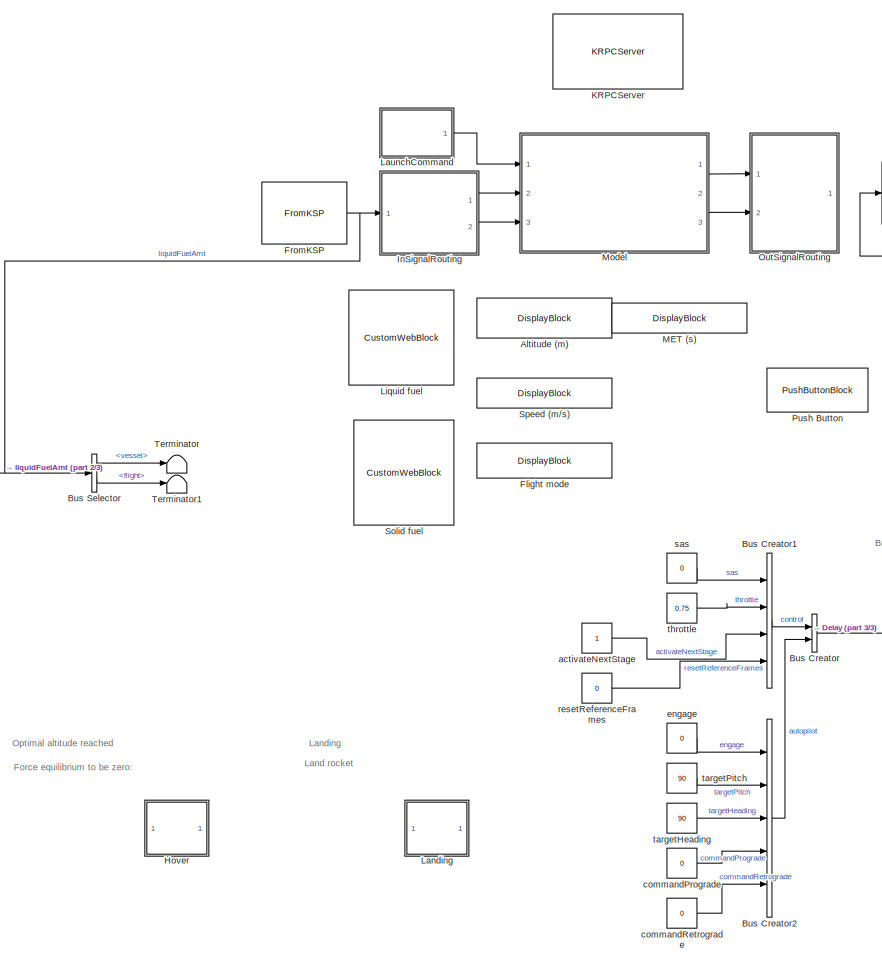
[diagram: root canvas - part 1/3, center side, full height]
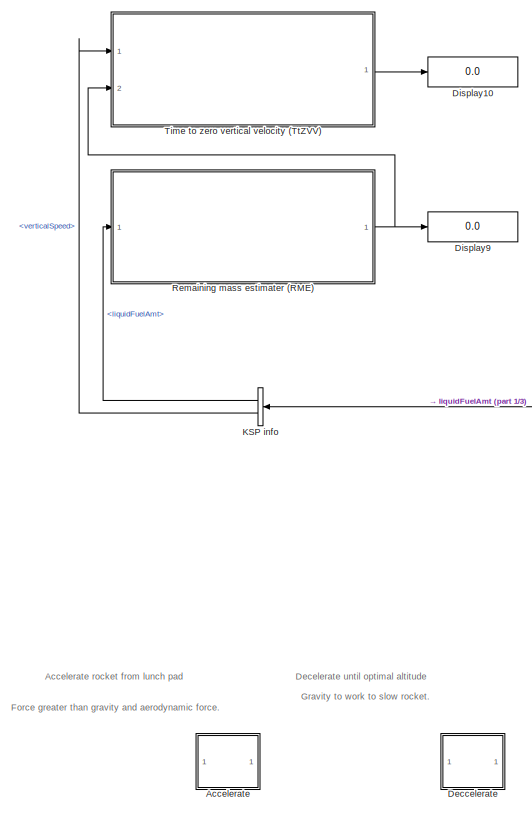
[diagram: root canvas - part 2/3, left side, full height]
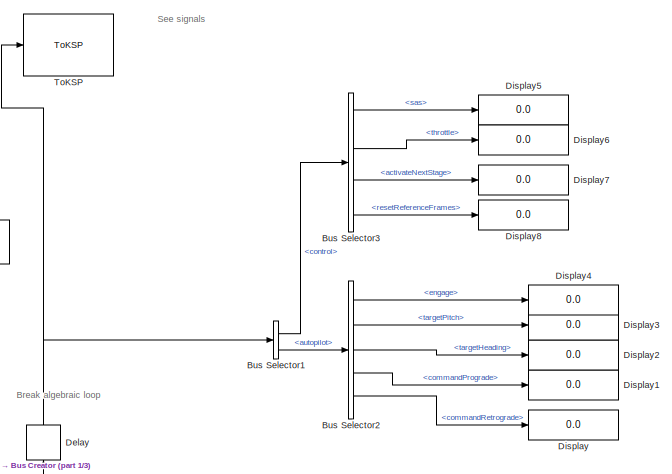
[diagram: root canvas - part 3/3, middle right region]
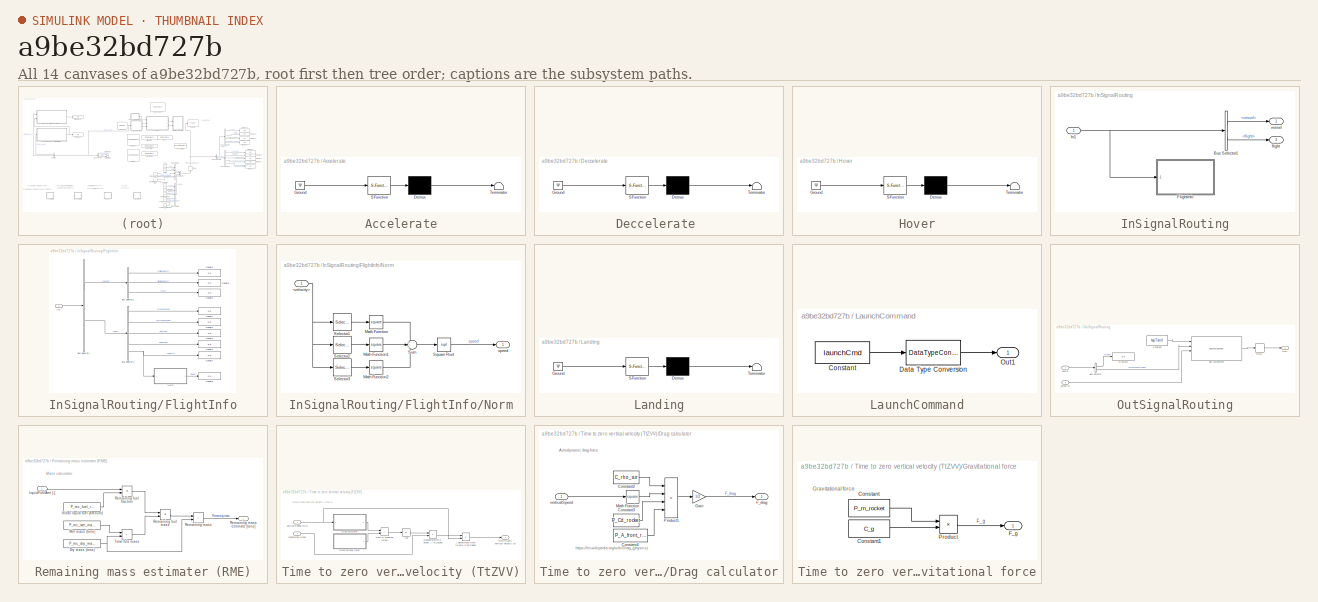
[diagram: thumbnail index - all 14 canvases of the model, root first then tree order]
MODEL slx_a9be32bd727b
KIND model
CONFIG AbsTol = auto
CONFIG EnableMultiTasking = off
CONFIG FixedStep = 0.01
CONFIG MaxStep = auto
CONFIG MinStep = auto
CONFIG RelTol = 1e-3
CONFIG SampleTimeConstraint = Unconstrained
CONFIG SolverName = FixedStepAuto
CONFIG StartTime = 0.0
CONFIG StopTime = inf
BLOCK [SubSystem] Accelerate
  ErrorFcn = Stateflow.Translate.translate
  PermitHierarchicalResolution = ExplicitOnly
  Ports = []
  RequestExecContextInheritance = off
  SFBlockType = Chart
  TreatAsAtomicUnit = on
BLOCK [Demux] Accelerate/ Demux 
  Outputs = 1
  Ports = [1, 1]
BLOCK [Ground] Accelerate/ Ground 
BLOCK [S-Function] Accelerate/ SFunction 
  EnableBusSupport = on
  FunctionName = sf_sfun
  PortCounts = [1 1]
  Ports = [1, 1]
  SFcnIsStateOwnerBlock = off
  SFunctionDeploymentMode = off
  Tag = Stateflow S-Function 3
BLOCK [Terminator] Accelerate/ Terminator 
BLOCK [DisplayBlock] Altitude (m)
  Format = short
  LabelPosition = Bottom
  Transparency = 1
BLOCK [BusCreator] Bus Creator
  DisplayOption = bar
  InheritFromInputs = on
  Inputs = 2
  NonVirtualBus = on
  OutDataTypeStr = Bus: kspTxIn
  Ports = [2, 1]
BLOCK [BusCreator] Bus Creator1
  DisplayOption = bar
  InheritFromInputs = on
  Inputs = 4
  NonVirtualBus = on
  OutDataTypeStr = Bus: control
  Ports = [4, 1]
BLOCK [BusCreator] Bus Creator2
  DisplayOption = bar
  InheritFromInputs = on
  Inputs = 5
  NonVirtualBus = on
  OutDataTypeStr = Bus: autopilot
  Ports = [5, 1]
BLOCK [BusSelector] Bus Selector
  OutputSignals = vessel,flight
  Ports = [1, 2]
BLOCK [BusSelector] Bus Selector1
  OutputSignals = control,autopilot
  Ports = [1, 2]
BLOCK [BusSelector] Bus Selector2
  OutputSignals = engage,targetPitch,targetHeading,commandPrograde,commandRetrograde
  Ports = [1, 5]
BLOCK [BusSelector] Bus Selector3
  OutputSignals = sas,throttle,activateNextStage,resetReferenceFrames
  Ports = [1, 4]
BLOCK [SubSystem] Deccelerate 
  ErrorFcn = Stateflow.Translate.translate
  PermitHierarchicalResolution = ExplicitOnly
  Ports = []
  RequestExecContextInheritance = off
  SFBlockType = Chart
  TreatAsAtomicUnit = on
BLOCK [Demux] Deccelerate / Demux 
  Outputs = 1
  Ports = [1, 1]
BLOCK [Ground] Deccelerate / Ground 
BLOCK [S-Function] Deccelerate / SFunction 
  EnableBusSupport = on
  FunctionName = sf_sfun
  PortCounts = [1 1]
  Ports = [1, 1]
  SFcnIsStateOwnerBlock = off
  SFunctionDeploymentMode = off
  Tag = Stateflow S-Function 1
BLOCK [Terminator] Deccelerate / Terminator 
BLOCK [Delay] Delay
  DelayLength = 1
  InputPortMap = u0
  NameLocation = right
  Ports = [1, 1]
BLOCK [Display] Display
  Decimation = 1
  Ports = [1]
BLOCK [Display] Display1
  Decimation = 1
  Ports = [1]
BLOCK [Display] Display10
  Decimation = 1
  Ports = [1]
BLOCK [Display] Display2
  Decimation = 1
  Ports = [1]
BLOCK [Display] Display3
  Decimation = 1
  Ports = [1]
BLOCK [Display] Display4
  Decimation = 1
  Ports = [1]
BLOCK [Display] Display5
  Decimation = 1
  Ports = [1]
BLOCK [Display] Display6
  Decimation = 1
  Ports = [1]
BLOCK [Display] Display7
  Decimation = 1
  Ports = [1]
BLOCK [Display] Display8
  Decimation = 1
  Ports = [1]
BLOCK [Display] Display9
  Decimation = 1
  Ports = [1]
BLOCK [DisplayBlock] Flight mode
  Format = short
  LabelPosition = Bottom
  Transparency = 1
BLOCK [Reference] FromKSP  REF=ksplib/FromKSP  (lib defined in slx_22327d9a050f)
  Ports = [0, 1]
  SourceBlock = ksplib/FromKSP
  SourceType = FromKSP
BLOCK [SubSystem] Hover
  ErrorFcn = Stateflow.Translate.translate
  PermitHierarchicalResolution = ExplicitOnly
  Ports = []
  RequestExecContextInheritance = off
  SFBlockType = Chart
  TreatAsAtomicUnit = on
BLOCK [Demux] Hover/ Demux 
  Outputs = 1
  Ports = [1, 1]
BLOCK [Ground] Hover/ Ground 
BLOCK [S-Function] Hover/ SFunction 
  EnableBusSupport = on
  FunctionName = sf_sfun
  PortCounts = [1 1]
  Ports = [1, 1]
  SFcnIsStateOwnerBlock = off
  SFunctionDeploymentMode = off
  Tag = Stateflow S-Function 5
BLOCK [Terminator] Hover/ Terminator 
BLOCK [SubSystem] InSignalRouting
  Commented = on
  Ports = [1, 2]
  RequestExecContextInheritance = off
BLOCK [BusSelector] InSignalRouting/Bus Selector1
  OutputSignals = vessel,flight
  Ports = [1, 2]
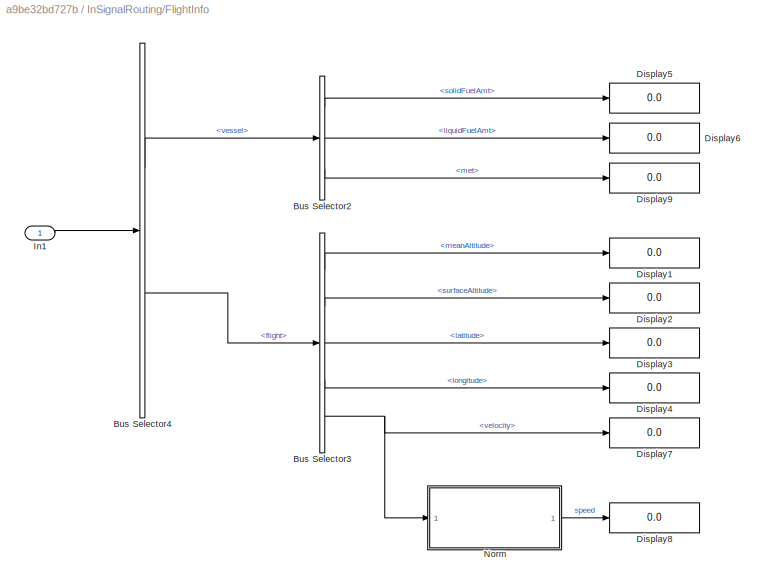
BLOCK [SubSystem] InSignalRouting/FlightInfo
  Ports = [1]
  RequestExecContextInheritance = off
BLOCK [BusSelector] InSignalRouting/FlightInfo/Bus Selector2
  OutputSignals = solidFuelAmt,liquidFuelAmt,met
  Ports = [1, 3]
BLOCK [BusSelector] InSignalRouting/FlightInfo/Bus Selector3
  OutputSignals = meanAltitude,surfaceAltitude,latitude,longitude,velocity
  Ports = [1, 5]
BLOCK [BusSelector] InSignalRouting/FlightInfo/Bus Selector4
  OutputSignals = vessel,flight
  Ports = [1, 2]
BLOCK [Display] InSignalRouting/FlightInfo/Display1
  Decimation = 1
  Ports = [1]
BLOCK [Display] InSignalRouting/FlightInfo/Display2
  Decimation = 1
  Ports = [1]
BLOCK [Display] InSignalRouting/FlightInfo/Display3
  Decimation = 1
  Ports = [1]
BLOCK [Display] InSignalRouting/FlightInfo/Display4
  Decimation = 1
  Ports = [1]
BLOCK [Display] InSignalRouting/FlightInfo/Display5
  Decimation = 1
  Ports = [1]
BLOCK [Display] InSignalRouting/FlightInfo/Display6
  Decimation = 1
  Ports = [1]
BLOCK [Display] InSignalRouting/FlightInfo/Display7
  Decimation = 1
  Ports = [1]
BLOCK [Display] InSignalRouting/FlightInfo/Display8
  Decimation = 1
  Ports = [1]
BLOCK [Display] InSignalRouting/FlightInfo/Display9
  Decimation = 1
  Ports = [1]
BLOCK [Inport] InSignalRouting/FlightInfo/In1
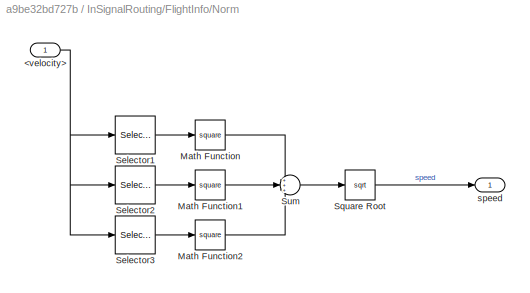
BLOCK [SubSystem] InSignalRouting/FlightInfo/Norm
  Ports = [1, 1]
  RequestExecContextInheritance = off
BLOCK [Inport] InSignalRouting/FlightInfo/Norm/<velocity>
BLOCK [Math] InSignalRouting/FlightInfo/Norm/Math Function
  Operator = square
  Ports = [1, 1]
BLOCK [Math] InSignalRouting/FlightInfo/Norm/Math Function1
  Operator = square
  Ports = [1, 1]
BLOCK [Math] InSignalRouting/FlightInfo/Norm/Math Function2
  Operator = square
  Ports = [1, 1]
BLOCK [Selector] InSignalRouting/FlightInfo/Norm/Selector1
  IndexOptions = Index vector (dialog)
  Indices = 1
  InputPortWidth = 3
  OutputSizes = 1
  Ports = [1, 1]
BLOCK [Selector] InSignalRouting/FlightInfo/Norm/Selector2
  IndexOptions = Index vector (dialog)
  Indices = 2
  InputPortWidth = 3
  OutputSizes = 1
  Ports = [1, 1]
BLOCK [Selector] InSignalRouting/FlightInfo/Norm/Selector3
  IndexOptions = Index vector (dialog)
  Indices = 3
  InputPortWidth = 3
  OutputSizes = 1
  Ports = [1, 1]
BLOCK [Sqrt] InSignalRouting/FlightInfo/Norm/Square Root
BLOCK [Sum] InSignalRouting/FlightInfo/Norm/Sum
  Inputs = +++
  Ports = [3, 1]
BLOCK [Outport] InSignalRouting/FlightInfo/Norm/speed
BLOCK [Inport] InSignalRouting/In1
BLOCK [Outport] InSignalRouting/flight
  Port = 2
BLOCK [Outport] InSignalRouting/vessel
BLOCK [Reference] KRPCServer  REF=ksplib/KRPCServer  (lib defined in slx_22327d9a050f)
  Ports = []
  SourceBlock = ksplib/KRPCServer
  SourceType = KRPCServer
BLOCK [BusSelector] KSP info
  NameLocation = top
  OutputSignals = vessel.liquidFuelAmt,flight.verticalSpeed
  Ports = [1, 2]
BLOCK [SubSystem] Landing
  ErrorFcn = Stateflow.Translate.translate
  PermitHierarchicalResolution = ExplicitOnly
  Ports = []
  RequestExecContextInheritance = off
  SFBlockType = Chart
  TreatAsAtomicUnit = on
BLOCK [Demux] Landing/ Demux 
  Outputs = 1
  Ports = [1, 1]
BLOCK [Ground] Landing/ Ground 
BLOCK [S-Function] Landing/ SFunction 
  EnableBusSupport = on
  FunctionName = sf_sfun
  PortCounts = [1 1]
  Ports = [1, 1]
  SFcnIsStateOwnerBlock = off
  SFunctionDeploymentMode = off
  Tag = Stateflow S-Function 4
BLOCK [Terminator] Landing/ Terminator 
BLOCK [SubSystem] LaunchCommand
  Commented = on
  Ports = [0, 1]
  RequestExecContextInheritance = off
BLOCK [Constant] LaunchCommand/Constant
  Value = launchCmd
BLOCK [DataTypeConversion] LaunchCommand/Data Type Conversion
  OutDataTypeStr = boolean
  RndMeth = Floor
  SaturateOnIntegerOverflow = off
BLOCK [Outport] LaunchCommand/Out1
BLOCK [CustomWebBlock] Liquid fuel
  Configuration = {"components":[{"name":"CircularScaleComponent","settings":{"bounds":{"max":225,"min":0,"tickInterval":"auto"},"direction":"cw","flipLimits":0,"innerRadius":0.75,"internalTickHeightScaleFactor":1,"labelColor":[255,252,199],"labelFont":{"font":"Arial","fontSize":12},"labelTransparency":1,"minorTickHeightScaleFactor":0.2,"needleImage":{"size":[1890,567],"src":"data:image\/svg+xml;base64,PD94bWwgdmVy...<+15935ch>
  LabelPosition = Hide
  ShowInitialText = on
BLOCK [DisplayBlock] MET (s)
  Format = short
  LabelPosition = Bottom
  Transparency = 1
BLOCK [ModelReference] Model
  Commented = on
  ModelNameDialog = guidance
  ModelReferenceVersion = 1.177
  Ports = [3, 3]
BLOCK [SubSystem] OutSignalRouting
  Commented = on
  Ports = [2, 1]
  RequestExecContextInheritance = off
BLOCK [BusAssignment] OutSignalRouting/Bus Assignment
  AssignedSignals = control.activateNextStage,autopilot,control.throttle
  Ports = [4, 1]
BLOCK [BusSelector] OutSignalRouting/Bus Selector
  OutputSignals = mode,activateNextStage
  Ports = [1, 2]
BLOCK [Constant] OutSignalRouting/Constant
  OutDataTypeStr = Bus: kspTxIn
  Value = kspTxIn0
BLOCK [Delay] OutSignalRouting/Delay
  DelayLength = 1
  InputPortMap = u0
  Ports = [1, 1]
BLOCK [Display] OutSignalRouting/Display5
  Decimation = 1
  Ports = [1]
BLOCK [Outport] OutSignalRouting/Out1
BLOCK [Inport] OutSignalRouting/autopilot
  OutDataTypeStr = Bus: autopilot
  Port = 2
BLOCK [Inport] OutSignalRouting/control
  OutDataTypeStr = Bus: mcout
BLOCK [PushButtonBlock] Push Button
  ButtonText = Launch
BLOCK [SubSystem] Remaining mass estimater (RME)
  Ports = [1, 1]
  RequestExecContextInheritance = off
BLOCK [Constant] Remaining mass estimater (RME)/Dry mass (tons)
  OutDataTypeStr = double
  Value = P_mc_dry_mass_rocket
BLOCK [Constant] Remaining mass estimater (RME)/Initial liquid fuel (amount)
  OutDataTypeStr = double
  Value = P_mc_fuel_rocket
BLOCK [Product] Remaining mass estimater (RME)/Remaining fuel fraction
  Inputs = */
  Ports = [2, 1]
BLOCK [Product] Remaining mass estimater (RME)/Remaining fuel mass
  Inputs = **
  Ports = [2, 1]
BLOCK [Sum] Remaining mass estimater (RME)/Remaining mass
  IconShape = rectangular
  Ports = [2, 1]
BLOCK [Outport] Remaining mass estimater (RME)/Remaining mass estimate [tons]
BLOCK [Sum] Remaining mass estimater (RME)/Total fule mass
  IconShape = rectangular
  Inputs = +-
  Ports = [2, 1]
BLOCK [Constant] Remaining mass estimater (RME)/Wet mass (tons)
  OutDataTypeStr = double
  Value = P_mc_wet_mass_rocket
BLOCK [Inport] Remaining mass estimater (RME)/liquidFuelAmt [-]
BLOCK [CustomWebBlock] Solid fuel
  Configuration = {"components":[{"name":"CircularScaleComponent","settings":{"bounds":{"max":750,"min":0,"tickInterval":"auto"},"direction":"cw","flipLimits":0,"innerRadius":0.75,"internalTickHeightScaleFactor":1,"labelColor":[255,252,199],"labelFont":{"font":"Arial","fontSize":12},"labelTransparency":1,"minorTickHeightScaleFactor":0.2,"needleImage":{"size":[1890,567],"src":"data:image\/svg+xml;base64,PD94bWwgdmVy...<+15935ch>
  LabelPosition = Hide
  ShowInitialText = on
BLOCK [DisplayBlock] Speed (m//s)
  Format = short
  LabelPosition = Bottom
  Transparency = 1
BLOCK [Terminator] Terminator
BLOCK [Terminator] Terminator1
BLOCK [SubSystem] Time to zero vertical velocity (TtZVV)
  Ports = [2, 1]
  RequestExecContextInheritance = off
BLOCK [Abs] Time to zero vertical velocity (TtZVV)/Abs
  SaturateOnIntegerOverflow = off
BLOCK [Product] Time to zero vertical velocity (TtZVV)/Approximate time to zero vertical velocity t_zvv = a_break // verticalSpeed
  Inputs = */
  Ports = [2, 1]
BLOCK [Product] Time to zero vertical velocity (TtZVV)/Deacceleration a_break = F_break // m_rocket
  Inputs = */
  Ports = [2, 1]
BLOCK [SubSystem] Time to zero vertical velocity (TtZVV)/Drag calculator
  Ports = [1, 1]
  RequestExecContextInheritance = off
BLOCK [Constant] Time to zero vertical velocity (TtZVV)/Drag calculator/Constant2
  Value = C_rho_air
BLOCK [Constant] Time to zero vertical velocity (TtZVV)/Drag calculator/Constant3
  Value = P_Cd_rocket
BLOCK [Constant] Time to zero vertical velocity (TtZVV)/Drag calculator/Constant4
  Value = P_A_front_rocket
BLOCK [Outport] Time to zero vertical velocity (TtZVV)/Drag calculator/F_drag
BLOCK [Gain] Time to zero vertical velocity (TtZVV)/Drag calculator/Gain
  Gain = 1/2
BLOCK [Math] Time to zero vertical velocity (TtZVV)/Drag calculator/Math Function
  Operator = square
  Ports = [1, 1]
BLOCK [Product] Time to zero vertical velocity (TtZVV)/Drag calculator/Product1
  Inputs = 4
  Ports = [4, 1]
BLOCK [Inport] Time to zero vertical velocity (TtZVV)/Drag calculator/verticalSpeed
BLOCK [SubSystem] Time to zero vertical velocity (TtZVV)/Gravitational force
  Ports = [0, 1]
  RequestExecContextInheritance = off
BLOCK [Constant] Time to zero vertical velocity (TtZVV)/Gravitational force/Constant
  Value = P_m_rocket
BLOCK [Constant] Time to zero vertical velocity (TtZVV)/Gravitational force/Constant1
  Value = C_g
BLOCK [Outport] Time to zero vertical velocity (TtZVV)/Gravitational force/F_g
BLOCK [Product] Time to zero vertical velocity (TtZVV)/Gravitational force/Product
  Ports = [2, 1]
BLOCK [Sum] Time to zero vertical velocity (TtZVV)/Sum of breaking forces
  IconShape = rectangular
  Ports = [2, 1]
BLOCK [Outport] Time to zero vertical velocity (TtZVV)/Time to zero vertical velocity [s]
BLOCK [Inport] Time to zero vertical velocity (TtZVV)/rocketMass [tons]
  Port = 2
BLOCK [Inport] Time to zero vertical velocity (TtZVV)/verticalSpeed [m//s]
BLOCK [Reference] ToKSP  REF=ksplib/ToKSP  (lib defined in slx_22327d9a050f)
  Ports = [1]
  SourceBlock = ksplib/ToKSP
  SourceType = ToKSP
BLOCK [Constant] activateNextStage
  OutDataTypeStr = boolean
BLOCK [Constant] commandPrograde
  OutDataTypeStr = boolean
  Value = 0
BLOCK [Constant] commandRetrograde
  OutDataTypeStr = boolean
  Value = 0
BLOCK [Constant] engage
  OutDataTypeStr = boolean
  Value = 0
BLOCK [Constant] resetReferenceFrames
  OutDataTypeStr = boolean
  Value = 0
BLOCK [Constant] sas
  OutDataTypeStr = boolean
  Value = 0
BLOCK [Constant] targetHeading
  Value = 90
BLOCK [Constant] targetPitch
  Value = 90
BLOCK [Constant] throttle
  Value = 0.75
ANNOTATION (root): Accelerate rocket from lunch pad
ANNOTATION (root): Break algebraic loop
ANNOTATION (root): Decelerate until optimal altitude
ANNOTATION (root): Force equilibrium to be zero:
ANNOTATION (root): Force greater than gravity and aerodynamic force.
ANNOTATION (root): Gravity to work to slow rocket.
ANNOTATION (root): Land rocket
ANNOTATION (root): Landing
ANNOTATION (root): Optimal altitude reached
ANNOTATION (root): See signals
ANNOTATION Remaining mass estimater (RME): Mass calculator
ANNOTATION Time to zero vertical velocity (TtZVV): Time to zero vertical velocity (TtZVV)
ANNOTATION Time to zero vertical velocity (TtZVV)/Drag calculator: Aerodynamic drag force
ANNOTATION Time to zero vertical velocity (TtZVV)/Drag calculator: https://en.wikipedia.org/wiki/Drag_(physics)
ANNOTATION Time to zero vertical velocity (TtZVV)/Gravitational force: Gravitational force
LINE Bus Creator1:1 -> Bus Creator:1
LINE Bus Creator2:1 -> Bus Creator:2
LINE Bus Creator:1 -> Delay:1
LINE Bus Selector1:1 -> Bus Selector3:1
LINE Bus Selector1:2 -> Bus Selector2:1
LINE Bus Selector2:1 -> Display4:1
LINE Bus Selector2:2 -> Display3:1
LINE Bus Selector2:3 -> Display2:1
LINE Bus Selector2:4 -> Display1:1
LINE Bus Selector2:5 -> Display:1
LINE Bus Selector3:1 -> Display5:1
LINE Bus Selector3:2 -> Display6:1
LINE Bus Selector3:3 -> Display7:1
LINE Bus Selector3:4 -> Display8:1
LINE Bus Selector:1 -> Terminator:1
LINE Bus Selector:2 -> Terminator1:1
NET Delay:1 -> Bus Selector1:1, ToKSP:1
NET FromKSP:1 -> Bus Selector:1, InSignalRouting:1, KSP info:1
LINE InSignalRouting/Bus Selector1:1 -> InSignalRouting/vessel:1
LINE InSignalRouting/Bus Selector1:2 -> InSignalRouting/flight:1
LINE InSignalRouting/FlightInfo/Bus Selector2:1 -> InSignalRouting/FlightInfo/Display5:1
LINE InSignalRouting/FlightInfo/Bus Selector2:2 -> InSignalRouting/FlightInfo/Display6:1
LINE InSignalRouting/FlightInfo/Bus Selector2:3 -> InSignalRouting/FlightInfo/Display9:1
LINE InSignalRouting/FlightInfo/Bus Selector3:1 -> InSignalRouting/FlightInfo/Display1:1
LINE InSignalRouting/FlightInfo/Bus Selector3:2 -> InSignalRouting/FlightInfo/Display2:1
LINE InSignalRouting/FlightInfo/Bus Selector3:3 -> InSignalRouting/FlightInfo/Display3:1
LINE InSignalRouting/FlightInfo/Bus Selector3:4 -> InSignalRouting/FlightInfo/Display4:1
NET InSignalRouting/FlightInfo/Bus Selector3:5 -> InSignalRouting/FlightInfo/Display7:1, InSignalRouting/FlightInfo/Norm:1
LINE InSignalRouting/FlightInfo/Bus Selector4:1 -> InSignalRouting/FlightInfo/Bus Selector2:1
LINE InSignalRouting/FlightInfo/Bus Selector4:2 -> InSignalRouting/FlightInfo/Bus Selector3:1
LINE InSignalRouting/FlightInfo/In1:1 -> InSignalRouting/FlightInfo/Bus Selector4:1
NET InSignalRouting/FlightInfo/Norm/<velocity>:1 -> InSignalRouting/FlightInfo/Norm/Selector1:1, InSignalRouting/FlightInfo/Norm/Selector2:1, InSignalRouting/FlightInfo/Norm/Selector3:1
LINE InSignalRouting/FlightInfo/Norm/Math Function1:1 -> InSignalRouting/FlightInfo/Norm/Sum:2
LINE InSignalRouting/FlightInfo/Norm/Math Function2:1 -> InSignalRouting/FlightInfo/Norm/Sum:3
LINE InSignalRouting/FlightInfo/Norm/Math Function:1 -> InSignalRouting/FlightInfo/Norm/Sum:1
LINE InSignalRouting/FlightInfo/Norm/Selector1:1 -> InSignalRouting/FlightInfo/Norm/Math Function:1
LINE InSignalRouting/FlightInfo/Norm/Selector2:1 -> InSignalRouting/FlightInfo/Norm/Math Function1:1
LINE InSignalRouting/FlightInfo/Norm/Selector3:1 -> InSignalRouting/FlightInfo/Norm/Math Function2:1
LINE InSignalRouting/FlightInfo/Norm/Square Root:1 -> InSignalRouting/FlightInfo/Norm/speed:1
LINE InSignalRouting/FlightInfo/Norm/Sum:1 -> InSignalRouting/FlightInfo/Norm/Square Root:1
LINE InSignalRouting/FlightInfo/Norm:1 -> InSignalRouting/FlightInfo/Display8:1
NET InSignalRouting/In1:1 -> InSignalRouting/Bus Selector1:1, InSignalRouting/FlightInfo:1
LINE InSignalRouting:1 -> Model:2
LINE InSignalRouting:2 -> Model:3
LINE KSP info:1 -> Remaining mass estimater (RME):1
LINE KSP info:2 -> Time to zero vertical velocity (TtZVV):1
LINE LaunchCommand/Constant:1 -> LaunchCommand/Data Type Conversion:1
LINE LaunchCommand/Data Type Conversion:1 -> LaunchCommand/Out1:1
LINE LaunchCommand:1 -> Model:1
LINE Model:1 -> OutSignalRouting:1
LINE Model:2 -> OutSignalRouting:2
LINE OutSignalRouting/Bus Assignment:1 -> OutSignalRouting/Delay:1
LINE OutSignalRouting/Bus Selector:1 -> OutSignalRouting/Display5:1
LINE OutSignalRouting/Bus Selector:2 -> OutSignalRouting/Bus Assignment:2
LINE OutSignalRouting/Constant:1 -> OutSignalRouting/Bus Assignment:1
LINE OutSignalRouting/Delay:1 -> OutSignalRouting/Out1:1
LINE OutSignalRouting/autopilot:1 -> OutSignalRouting/Bus Assignment:3
LINE OutSignalRouting/control:1 -> OutSignalRouting/Bus Selector:1
NET Remaining mass estimater (RME)/Dry mass (tons):1 -> Remaining mass estimater (RME)/Remaining mass:2, Remaining mass estimater (RME)/Total fule mass:2
LINE Remaining mass estimater (RME)/Initial liquid fuel (amount):1 -> Remaining mass estimater (RME)/Remaining fuel fraction:2
LINE Remaining mass estimater (RME)/Remaining fuel fraction:1 -> Remaining mass estimater (RME)/Remaining fuel mass:1
LINE Remaining mass estimater (RME)/Remaining fuel mass:1 -> Remaining mass estimater (RME)/Remaining mass:1
LINE Remaining mass estimater (RME)/Remaining mass:1 -> Remaining mass estimater (RME)/Remaining mass estimate [tons]:1
LINE Remaining mass estimater (RME)/Total fule mass:1 -> Remaining mass estimater (RME)/Remaining fuel mass:2
LINE Remaining mass estimater (RME)/Wet mass (tons):1 -> Remaining mass estimater (RME)/Total fule mass:1
LINE Remaining mass estimater (RME)/liquidFuelAmt [-]:1 -> Remaining mass estimater (RME)/Remaining fuel fraction:1
NET Remaining mass estimater (RME):1 -> Display9:1, Time to zero vertical velocity (TtZVV):2
LINE Time to zero vertical velocity (TtZVV)/Abs:1 -> Time to zero vertical velocity (TtZVV)/Deacceleration a_break = F_break // m_rocket:1
LINE Time to zero vertical velocity (TtZVV)/Approximate time to zero vertical velocity t_zvv = a_break // verticalSpeed:1 -> Time to zero vertical velocity (TtZVV)/Time to zero vertical velocity [s]:1
LINE Time to zero vertical velocity (TtZVV)/Deacceleration a_break = F_break // m_rocket:1 -> Time to zero vertical velocity (TtZVV)/Approximate time to zero vertical velocity t_zvv = a_break // verticalSpeed:1
LINE Time to zero vertical velocity (TtZVV)/Drag calculator/Constant2:1 -> Time to zero vertical velocity (TtZVV)/Drag calculator/Product1:1
LINE Time to zero vertical velocity (TtZVV)/Drag calculator/Constant3:1 -> Time to zero vertical velocity (TtZVV)/Drag calculator/Product1:3
LINE Time to zero vertical velocity (TtZVV)/Drag calculator/Constant4:1 -> Time to zero vertical velocity (TtZVV)/Drag calculator/Product1:4
LINE Time to zero vertical velocity (TtZVV)/Drag calculator/Gain:1 -> Time to zero vertical velocity (TtZVV)/Drag calculator/F_drag:1
LINE Time to zero vertical velocity (TtZVV)/Drag calculator/Math Function:1 -> Time to zero vertical velocity (TtZVV)/Drag calculator/Product1:2
LINE Time to zero vertical velocity (TtZVV)/Drag calculator/Product1:1 -> Time to zero vertical velocity (TtZVV)/Drag calculator/Gain:1
LINE Time to zero vertical velocity (TtZVV)/Drag calculator/verticalSpeed:1 -> Time to zero vertical velocity (TtZVV)/Drag calculator/Math Function:1
LINE Time to zero vertical velocity (TtZVV)/Drag calculator:1 -> Time to zero vertical velocity (TtZVV)/Sum of breaking forces:1
LINE Time to zero vertical velocity (TtZVV)/Gravitational force/Constant1:1 -> Time to zero vertical velocity (TtZVV)/Gravitational force/Product:2
LINE Time to zero vertical velocity (TtZVV)/Gravitational force/Constant:1 -> Time to zero vertical velocity (TtZVV)/Gravitational force/Product:1
LINE Time to zero vertical velocity (TtZVV)/Gravitational force/Product:1 -> Time to zero vertical velocity (TtZVV)/Gravitational force/F_g:1
LINE Time to zero vertical velocity (TtZVV)/Gravitational force:1 -> Time to zero vertical velocity (TtZVV)/Sum of breaking forces:2
LINE Time to zero vertical velocity (TtZVV)/Sum of breaking forces:1 -> Time to zero vertical velocity (TtZVV)/Abs:1
LINE Time to zero vertical velocity (TtZVV)/rocketMass [tons]:1 -> Time to zero vertical velocity (TtZVV)/Deacceleration a_break = F_break // m_rocket:2
NET Time to zero vertical velocity (TtZVV)/verticalSpeed [m//s]:1 -> Time to zero vertical velocity (TtZVV)/Approximate time to zero vertical velocity t_zvv = a_break // verticalSpeed:2, Time to zero vertical velocity (TtZVV)/Drag calculator:1
LINE Time to zero vertical velocity (TtZVV):1 -> Display10:1
LINE activateNextStage:1 -> Bus Creator1:3
LINE commandPrograde:1 -> Bus Creator2:4
LINE commandRetrograde:1 -> Bus Creator2:5
LINE engage:1 -> Bus Creator2:1
LINE resetReferenceFrames:1 -> Bus Creator1:4
LINE sas:1 -> Bus Creator1:1
LINE targetHeading:1 -> Bus Creator2:3
LINE targetPitch:1 -> Bus Creator2:2
LINE throttle:1 -> Bus Creator1:2
note: NET lines group one-source signal fan-out (src -> all destinations, sorted); 1:1 wires keep LINE
CHART Deccelerate  states=0 transitions=0
CHART Accelerate states=0 transitions=0
CHART Landing states=0 transitions=0
CHART Hover states=0 transitions=0
CHART  states=0 transitions=0
CHART  states=0 transitions=0
CHART  states=0 transitions=0
CHART  states=0 transitions=0
